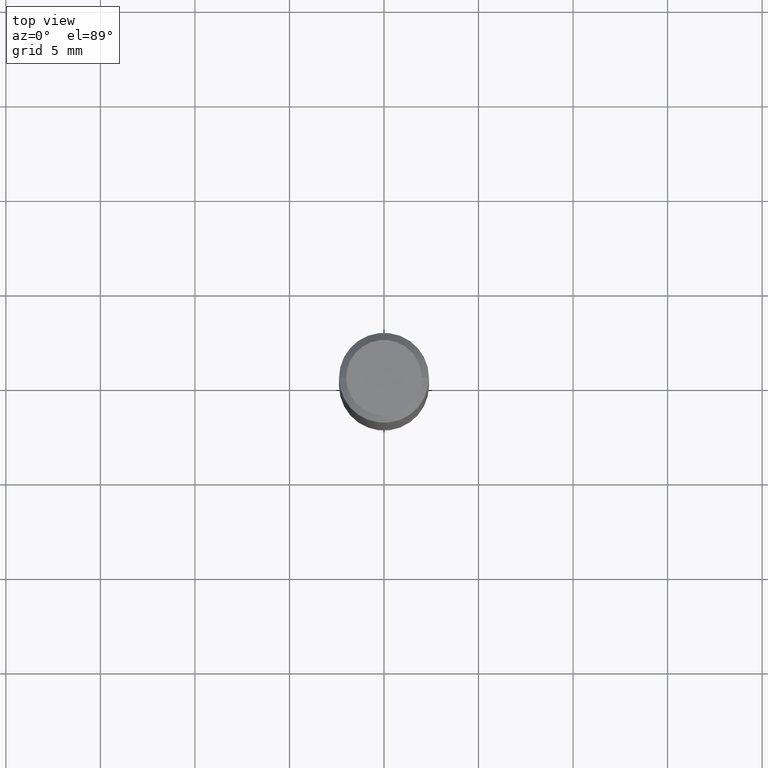
[diagram: clean part render]
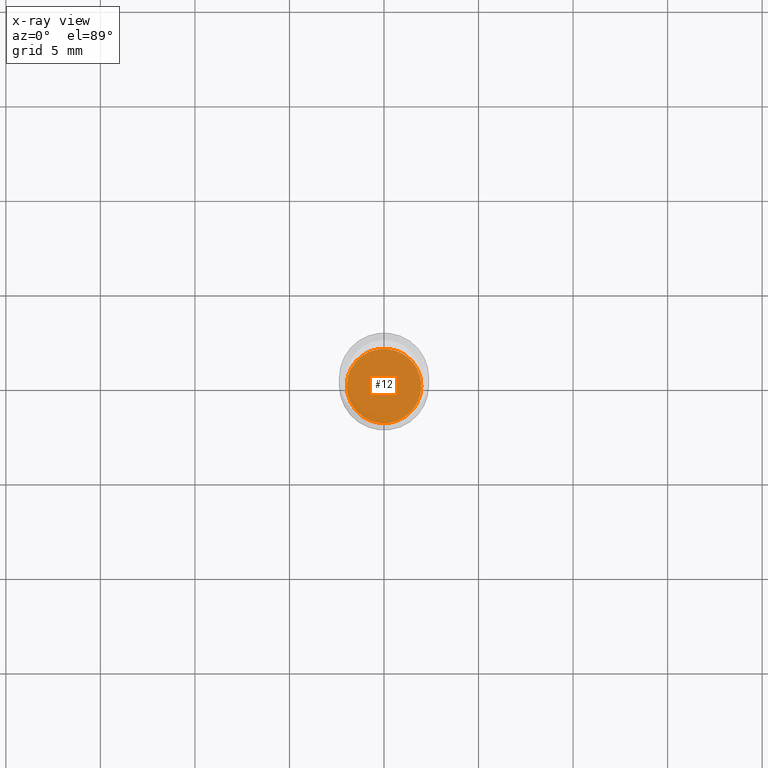
[diagram: x-ray — body ghosted, one internal face saturated and labeled with its STEP entity id]
A machine part, top view, then the same camera in x-ray: the body is ghosted and one INTERNAL B-rep face — a face not visible from any outside direction — is saturated and labeled: STEP entity #12.
In plain terms, the highlighted planar face has unit normal (-0, 0, 1).
Its self-contained STEP definition (entity closure, byte-faithful):
#11 = VERTEX_POINT ( 'NONE', #351 ) ;
#12 = ADVANCED_FACE ( 'NONE', ( #389 ), #95, .F. ) ;
#25 = DIRECTION ( 'NONE',  ( 1.000000000000000000, -6.982962677686266711E-15, 0.000000000000000000 ) ) ;
#31 = EDGE_CURVE ( 'NONE', #11, #341, #267, .T. ) ;
#53 = EDGE_LOOP ( 'NONE', ( #148, #108 ) ) ;
#61 = DIRECTION ( 'NONE',  ( -2.438088387897960049E-29, 3.491481338843145188E-15, 1.000000000000000000 ) ) ;
#87 = CARTESIAN_POINT ( 'NONE',  ( 2.445468806185136877E-29, -3.491481338843145977E-15, -1.000000000000000222 ) ) ;
#95 = PLANE ( 'NONE',  #447 ) ;
#108 = ORIENTED_EDGE ( 'NONE', *, *, #31, .F. ) ;
#148 = ORIENTED_EDGE ( 'NONE', *, *, #185, .F. ) ;
#158 = CARTESIAN_POINT ( 'NONE',  ( 2.445468806185136877E-29, -3.491481338843145977E-15, -1.000000000000000222 ) ) ;
#185 = EDGE_CURVE ( 'NONE', #341, #11, #198, .T. ) ;
#198 = CIRCLE ( 'NONE', #316, 0.07760000000000000231 ) ;
#202 = DIRECTION ( 'NONE',  ( 1.000000000000000000, -6.982962677686265922E-15, 4.876176775795935793E-29 ) ) ;
#241 = DIRECTION ( 'NONE',  ( -2.445468806185136597E-29, 3.491481338843145583E-15, 1.000000000000000000 ) ) ;
#258 = DIRECTION ( 'NONE',  ( 1.000000000000000000, -6.982962677686266711E-15, 0.000000000000000000 ) ) ;
#267 = CIRCLE ( 'NONE', #440, 0.07760000000000000231 ) ;
#316 = AXIS2_PLACEMENT_3D ( 'NONE', #158, #416, #258 ) ;
#341 = VERTEX_POINT ( 'NONE', #381 ) ;
#351 = CARTESIAN_POINT ( 'NONE',  ( -0.07760000000000000231, -2.937450948719197015E-15, -1.000000000000000222 ) ) ;
#381 = CARTESIAN_POINT ( 'NONE',  ( 0.07760000000000000231, -4.033359242631600406E-15, -1.000000000000000222 ) ) ;
#389 = FACE_OUTER_BOUND ( 'NONE', #53, .T. ) ;
#416 = DIRECTION ( 'NONE',  ( -2.445468806185136597E-29, 3.491481338843145583E-15, 1.000000000000000000 ) ) ;
#421 = CARTESIAN_POINT ( 'NONE',  ( 2.445468806185136877E-29, -3.491481338843145977E-15, -1.000000000000000222 ) ) ;
#440 = AXIS2_PLACEMENT_3D ( 'NONE', #421, #241, #25 ) ;
#447 = AXIS2_PLACEMENT_3D ( 'NONE', #87, #61, #202 ) ;